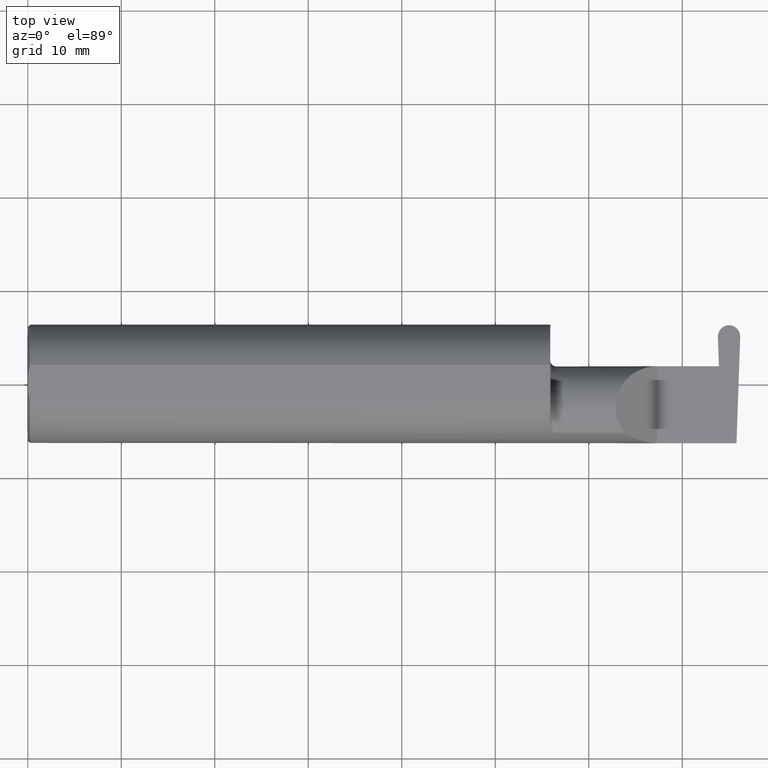
[diagram: clean part render]
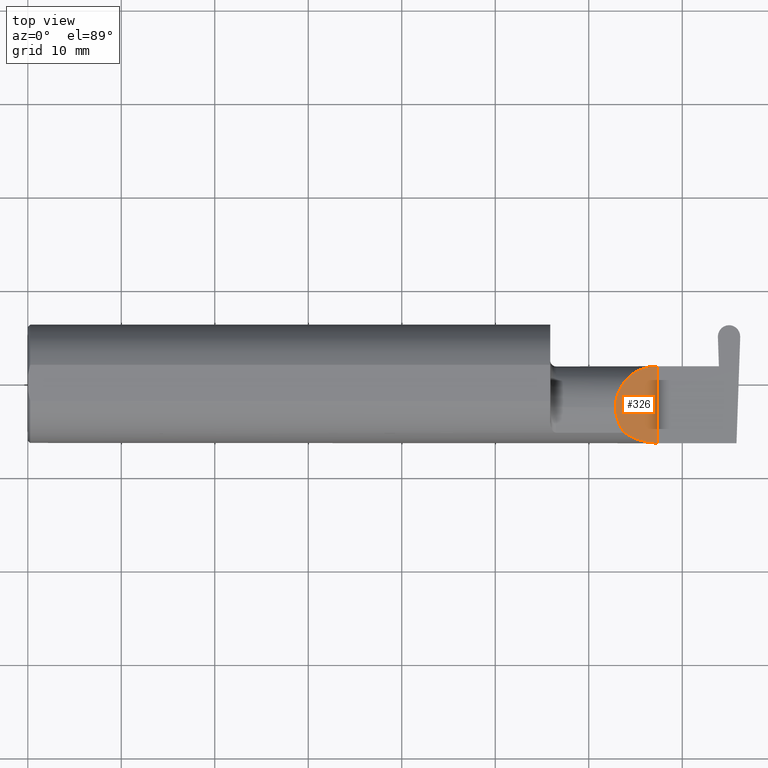
[diagram: same view with one face highlighted and labeled with its STEP entity id]
A machine part, top view. The second image highlights one B-rep face of the part: STEP entity #326.
In plain terms, the highlighted planar face has unit normal (-0.7071, 0, -0.7071).
Its self-contained STEP definition (entity closure, byte-faithful):
#6 = DIRECTION ( 'NONE',  ( -0.7071067811865439090, 0.000000000000000000, -0.7071067811865511255 ) ) ;
#10 = CARTESIAN_POINT ( 'NONE',  ( 2.650000000000000355, -0.2500000000000000555, 4.286263797015729199E-17 ) ) ;
#52 = CARTESIAN_POINT ( 'NONE',  ( 2.474999999999998757, 0.001662626584708286077, 0.1750000000000000722 ) ) ;
#81 = DIRECTION ( 'NONE',  ( -0.7071067811865511255, 0.000000000000000000, 0.7071067811865439090 ) ) ;
#84 = EDGE_LOOP ( 'NONE', ( #613, #336, #639, #732 ) ) ;
#87 = CARTESIAN_POINT ( 'NONE',  ( 2.487690731615565642, -0.1771157075472507003, 0.1623092683844333250 ) ) ;
#121 = DIRECTION ( 'NONE',  ( -0.000000000000000000, 1.000000000000000000, -0.000000000000000000 ) ) ;
#122 = VERTEX_POINT ( 'NONE', #219 ) ;
#147 = EDGE_CURVE ( 'NONE', #579, #752, #161, .T. ) ;
#161 =( BOUNDED_CURVE ( )  B_SPLINE_CURVE ( 3, ( #203, #87, #333, #534 ),
 .UNSPECIFIED., .F., .T. ) 
 B_SPLINE_CURVE_WITH_KNOTS ( ( 4, 4 ),
 ( 5.623622464215683792, 6.283185307179586232 ),
 .UNSPECIFIED. ) 
 CURVE ( )  GEOMETRIC_REPRESENTATION_ITEM ( )  RATIONAL_B_SPLINE_CURVE ( ( 1.000000000000000000, 0.9640754331822833922, 0.9640754331822833922, 1.000000000000000000 ) ) 
 REPRESENTATION_ITEM ( '' )  );
#167 = CARTESIAN_POINT ( 'NONE',  ( 2.552984868485331571, -0.2355204011147991605, 0.09701513151466779894 ) ) ;
#180 = CARTESIAN_POINT ( 'NONE',  ( 2.474999999999998757, -0.1008500000000001340, 0.1750000000000001277 ) ) ;
#186 = VERTEX_POINT ( 'NONE', #565 ) ;
#203 = CARTESIAN_POINT ( 'NONE',  ( 2.511704467739031887, -0.2080850024789287211, 0.1382955322609671911 ) ) ;
#219 = CARTESIAN_POINT ( 'NONE',  ( 2.650000000000000355, 0.07414999999999995206, 9.797174393178813824E-17 ) ) ;
#227 =( BOUNDED_CURVE ( )  B_SPLINE_CURVE ( 3, ( #693, #234, #167, #698 ),
 .UNSPECIFIED., .F., .F. ) 
 B_SPLINE_CURVE_WITH_KNOTS ( ( 4, 4 ),
 ( 4.712388980384689674, 5.298966915116348986 ),
 .UNSPECIFIED. ) 
 CURVE ( )  GEOMETRIC_REPRESENTATION_ITEM ( )  RATIONAL_B_SPLINE_CURVE ( ( 1.000000000000000000, 0.9715321379117536349, 0.9715321379117536349, 1.000000000000000000 ) ) 
 REPRESENTATION_ITEM ( '' )  );
#234 = CARTESIAN_POINT ( 'NONE',  ( 2.600434159100402987, -0.2498499999999999610, 0.04956584089959713973 ) ) ;
#235 = EDGE_CURVE ( 'NONE', #186, #122, #480, .T. ) ;
#251 = CARTESIAN_POINT ( 'NONE',  ( 2.474999999999998757, -0.1008500000000001340, 0.1750000000000001277 ) ) ;
#272 = EDGE_CURVE ( 'NONE', #752, #122, #748, .T. ) ;
#315 = CARTESIAN_POINT ( 'NONE',  ( 2.650000000000000355, 0.07414999999999995206, 9.797174393178813824E-17 ) ) ;
#326 = ADVANCED_FACE ( 'NONE', ( #384 ), #783, .F. ) ;
#333 = CARTESIAN_POINT ( 'NONE',  ( 2.474999999999998757, -0.1400387324517230747, 0.1750000000000001277 ) ) ;
#336 = ORIENTED_EDGE ( 'NONE', *, *, #721, .F. ) ;
#384 = FACE_OUTER_BOUND ( 'NONE', #84, .T. ) ;
#480 = LINE ( 'NONE', #694, #620 ) ;
#534 = CARTESIAN_POINT ( 'NONE',  ( 2.474999999999998757, -0.1008500000000001340, 0.1750000000000001277 ) ) ;
#542 = CARTESIAN_POINT ( 'NONE',  ( 2.511704467739031887, -0.2080850024789287211, 0.1382955322609671911 ) ) ;
#565 = CARTESIAN_POINT ( 'NONE',  ( 2.650000000000000355, -0.2498499999999999610, 4.286263797015729199E-17 ) ) ;
#579 = VERTEX_POINT ( 'NONE', #542 ) ;
#613 = ORIENTED_EDGE ( 'NONE', *, *, #147, .F. ) ;
#620 = VECTOR ( 'NONE', #121, 39.37007874015748143 ) ;
#638 = CARTESIAN_POINT ( 'NONE',  ( 2.547487373415290968, 0.07414999999999995206, 0.1025126265847084717 ) ) ;
#639 = ORIENTED_EDGE ( 'NONE', *, *, #235, .T. ) ;
#693 = CARTESIAN_POINT ( 'NONE',  ( 2.650000000000000355, -0.2498499999999999610, 4.286263797015729199E-17 ) ) ;
#694 = CARTESIAN_POINT ( 'NONE',  ( 2.650000000000000355, -0.2500000000000000555, 4.286263797015729199E-17 ) ) ;
#698 = CARTESIAN_POINT ( 'NONE',  ( 2.511704467739031887, -0.2080850024789287211, 0.1382955322609671911 ) ) ;
#721 = EDGE_CURVE ( 'NONE', #186, #579, #227, .T. ) ;
#732 = ORIENTED_EDGE ( 'NONE', *, *, #272, .F. ) ;
#748 =( BOUNDED_CURVE ( )  B_SPLINE_CURVE ( 3, ( #180, #52, #638, #315 ),
 .UNSPECIFIED., .F., .T. ) 
 B_SPLINE_CURVE_WITH_KNOTS ( ( 4, 4 ),
 ( 0.000000000000000000, 1.570796326794896336 ),
 .UNSPECIFIED. ) 
 CURVE ( )  GEOMETRIC_REPRESENTATION_ITEM ( )  RATIONAL_B_SPLINE_CURVE ( ( 1.000000000000000000, 0.8047378541243650485, 0.8047378541243650485, 1.000000000000000000 ) ) 
 REPRESENTATION_ITEM ( '' )  );
#752 = VERTEX_POINT ( 'NONE', #251 ) ;
#783 = PLANE ( 'NONE',  #793 ) ;
#793 = AXIS2_PLACEMENT_3D ( 'NONE', #10, #6, #81 ) ;